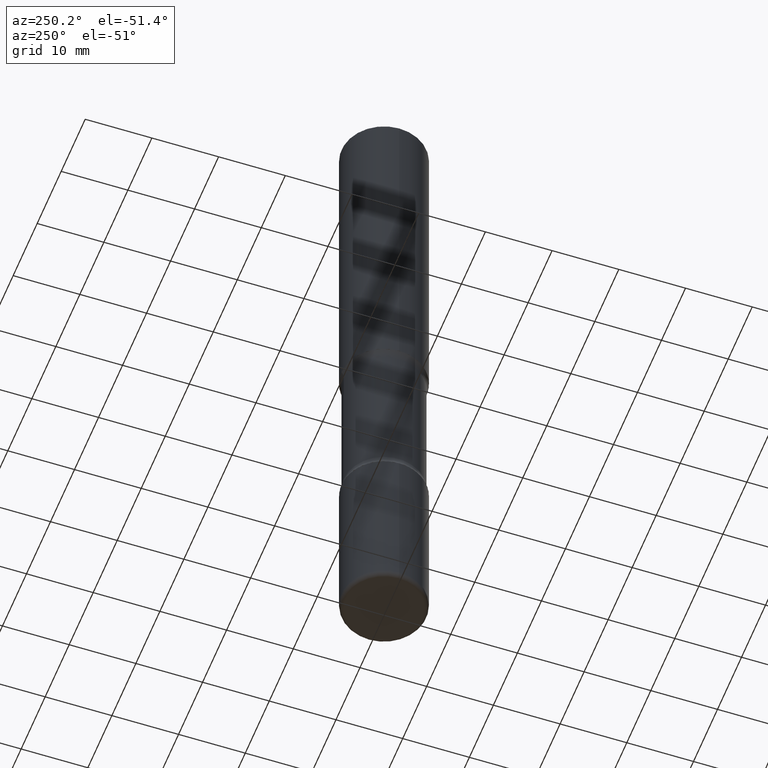
[diagram: clean part render]
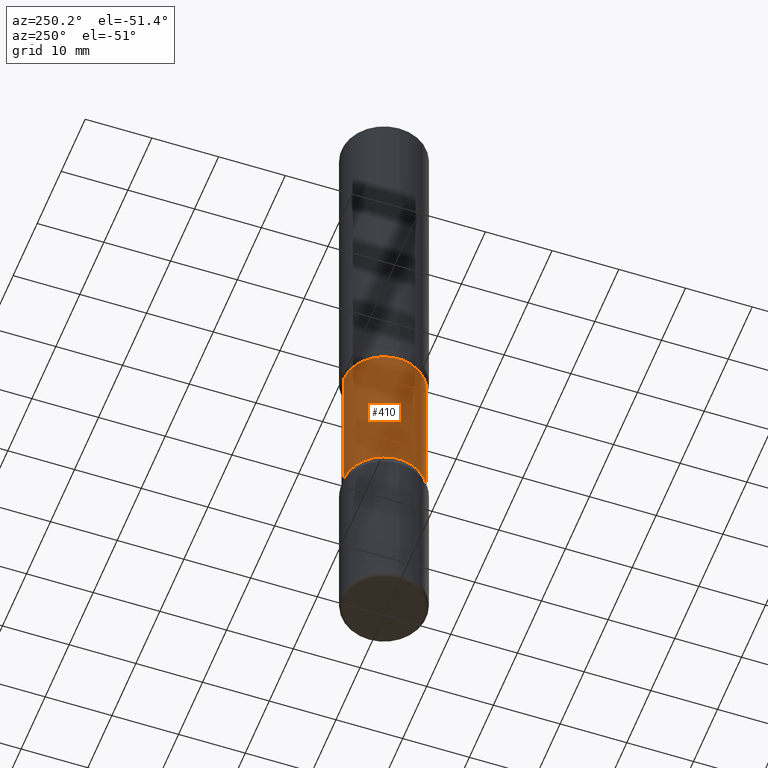
[diagram: same view with one face highlighted and labeled with its STEP entity id]
A machine part, auxiliary view. The second image highlights one B-rep face of the part: STEP entity #410.
In plain terms, the highlighted cylindrical surface (partial cylindrical patch) has radius 6.0325 mm, axis along (0, -0, -1).
Its self-contained STEP definition (entity closure, byte-faithful):
#7 = DIRECTION ( 'NONE',  ( 2.530378452311521502E-29, -3.369885892833230986E-15, -1.000000000000000000 ) ) ;
#8 = DIRECTION ( 'NONE',  ( 2.530378452311521502E-29, -3.369885892833230986E-15, -1.000000000000000000 ) ) ;
#16 = EDGE_CURVE ( 'NONE', #522, #553, #38, .T. ) ;
#19 = CARTESIAN_POINT ( 'NONE',  ( 9.866784870866931853E-29, -1.384432990936266734E-14, -4.000000000000000000 ) ) ;
#29 = CARTESIAN_POINT ( 'NONE',  ( 1.658453635950538436E-15, 0.2374999999999928557, -2.054486236794259568 ) ) ;
#38 = CIRCLE ( 'NONE', #542, 0.2375000000000000722 ) ;
#55 = AXIS2_PLACEMENT_3D ( 'NONE', #213, #460, #539 ) ;
#56 = VECTOR ( 'NONE', #376, 39.37007874015748143 ) ;
#57 = EDGE_LOOP ( 'NONE', ( #221, #397, #395, #369 ) ) ;
#166 = CARTESIAN_POINT ( 'NONE',  ( -1.629368274470640415E-15, -0.2375000000000139222, -3.999999999999999556 ) ) ;
#189 = LINE ( 'NONE', #166, #56 ) ;
#194 = DIRECTION ( 'NONE',  ( 6.982962677686265133E-15, 1.000000000000000000, -2.300503573612010239E-15 ) ) ;
#203 = EDGE_CURVE ( 'NONE', #236, #557, #533, .T. ) ;
#213 = CARTESIAN_POINT ( 'NONE',  ( 4.943898765775623630E-29, -7.288170524422749615E-15, -2.054486236794258680 ) ) ;
#221 = ORIENTED_EDGE ( 'NONE', *, *, #448, .F. ) ;
#236 = VERTEX_POINT ( 'NONE', #423 ) ;
#260 = AXIS2_PLACEMENT_3D ( 'NONE', #19, #8, #194 ) ;
#277 = FACE_OUTER_BOUND ( 'NONE', #57, .T. ) ;
#321 = DIRECTION ( 'NONE',  ( 6.982962677686265133E-15, 1.000000000000000000, -2.300503573612010239E-15 ) ) ;
#332 = LINE ( 'NONE', #489, #534 ) ;
#345 = EDGE_CURVE ( 'NONE', #557, #553, #332, .T. ) ;
#369 = ORIENTED_EDGE ( 'NONE', *, *, #16, .F. ) ;
#376 = DIRECTION ( 'NONE',  ( 2.530378452311521502E-29, -3.369885892833230592E-15, -1.000000000000000000 ) ) ;
#395 = ORIENTED_EDGE ( 'NONE', *, *, #345, .T. ) ;
#397 = ORIENTED_EDGE ( 'NONE', *, *, #203, .T. ) ;
#399 = DIRECTION ( 'NONE',  ( 2.530378452311521502E-29, -3.369885892833230592E-15, -1.000000000000000000 ) ) ;
#410 = ADVANCED_FACE ( 'NONE', ( #277 ), #442, .T. ) ;
#423 = CARTESIAN_POINT ( 'NONE',  ( -1.672246386956763723E-15, -0.2375000000000074274, -2.054486236794258236 ) ) ;
#442 = CYLINDRICAL_SURFACE ( 'NONE', #260, 0.2375000000000000999 ) ;
#448 = EDGE_CURVE ( 'NONE', #236, #522, #189, .T. ) ;
#460 = DIRECTION ( 'NONE',  ( 2.530378452311521502E-29, -3.369885892833230986E-15, -1.000000000000000000 ) ) ;
#489 = CARTESIAN_POINT ( 'NONE',  ( 1.658453635950587543E-15, 0.2374999999999862776, -4.000000000000000888 ) ) ;
#502 = CARTESIAN_POINT ( 'NONE',  ( -1.672246386956739071E-15, -0.2375000000000103417, -2.945513763205740876 ) ) ;
#522 = VERTEX_POINT ( 'NONE', #502 ) ;
#527 = CARTESIAN_POINT ( 'NONE',  ( 7.198535619023675570E-29, -1.029083161580289368E-14, -2.945513763205741320 ) ) ;
#533 = CIRCLE ( 'NONE', #55, 0.2375000000000001277 ) ;
#534 = VECTOR ( 'NONE', #399, 39.37007874015748143 ) ;
#539 = DIRECTION ( 'NONE',  ( 6.982962677686265133E-15, 1.000000000000000000, -3.450755360418014766E-15 ) ) ;
#540 = CARTESIAN_POINT ( 'NONE',  ( 1.658453635950560525E-15, 0.2374999999999897748, -2.945513763205741764 ) ) ;
#542 = AXIS2_PLACEMENT_3D ( 'NONE', #527, #7, #321 ) ;
#553 = VERTEX_POINT ( 'NONE', #540 ) ;
#557 = VERTEX_POINT ( 'NONE', #29 ) ;